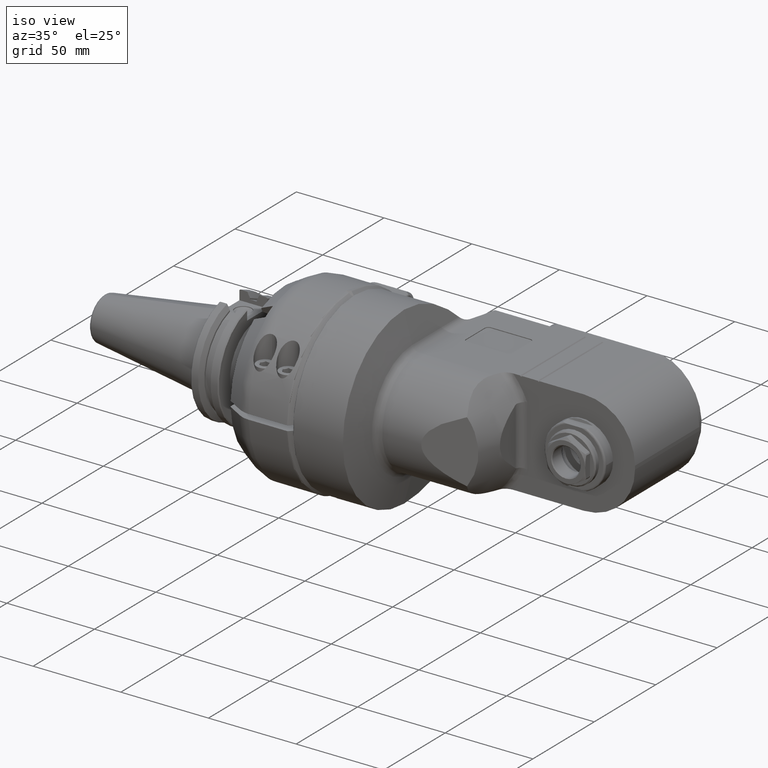
[diagram: clean part render]
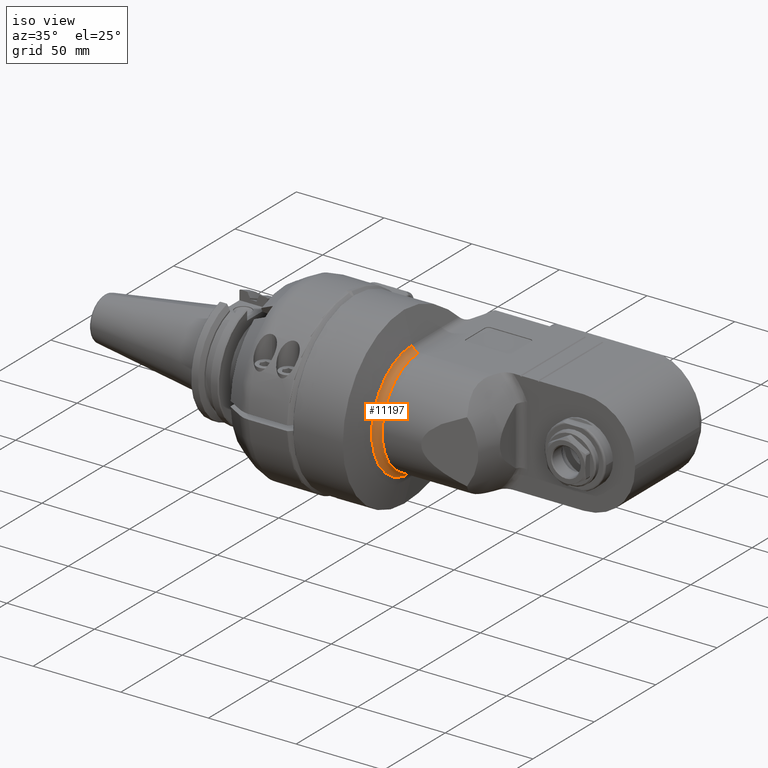
[diagram: same view with one face highlighted and labeled with its STEP entity id]
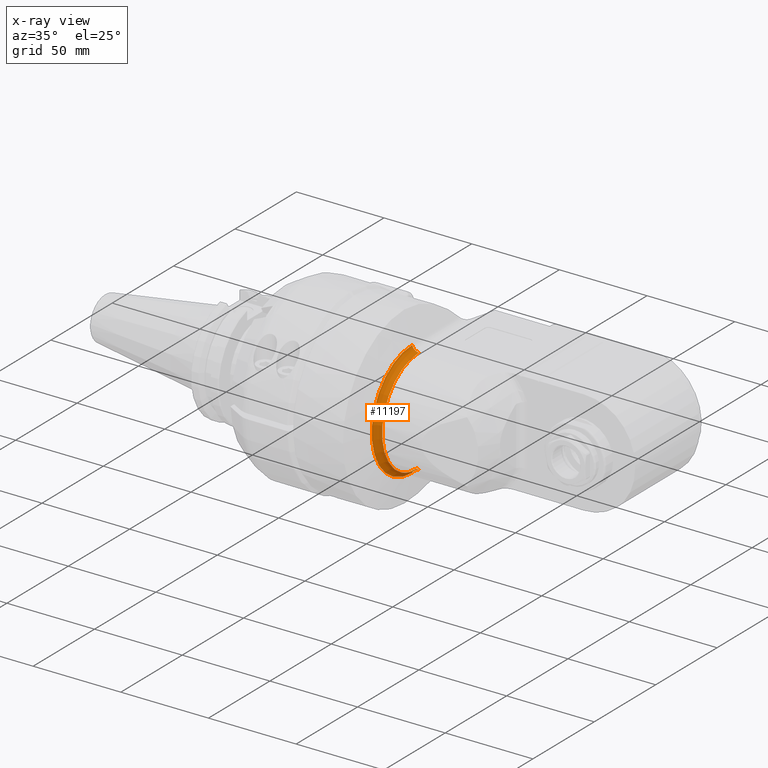
[diagram: x-ray of the same camera — body ghosted, the highlighted face saturated]
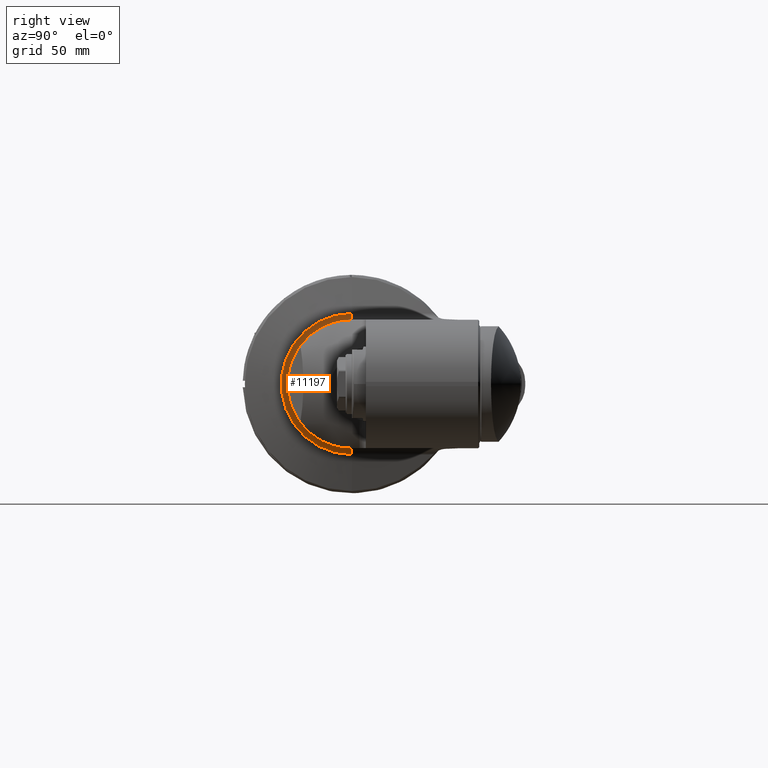
[diagram: same view with one face highlighted and labeled with its STEP entity id]
A machine part, iso view. The second image highlights one B-rep face of the part: STEP entity #11197.
The next image is the same camera in x-ray: the body ghosted, the highlighted face saturated — about 0% of this face is hidden behind the body in this view.
A second angle (right view) of the same face is appended — the face is thin or edge-on in the first view.
In plain terms, the highlighted toroidal blend (fillet) surface has major radius 34 mm and minor (blend) radius 4 mm.
Its self-contained STEP definition (entity closure, byte-faithful):
#350=TOROIDAL_SURFACE('',#11994,34.,4.);
#990=FACE_OUTER_BOUND('',#1713,.T.);
#1713=EDGE_LOOP('',(#7639,#7640,#7641,#7642));
#4097=CIRCLE('',#11993,32.96472381959);
#4098=CIRCLE('',#11995,4.);
#4099=CIRCLE('',#11996,30.);
#4100=CIRCLE('',#11997,4.);
#4785=VERTEX_POINT('',#17023);
#4786=VERTEX_POINT('',#17024);
#4787=VERTEX_POINT('',#17029);
#4788=VERTEX_POINT('',#17031);
#5914=EDGE_CURVE('',#4785,#4786,#4097,.T.);
#5917=EDGE_CURVE('',#4786,#4787,#4098,.T.);
#5918=EDGE_CURVE('',#4787,#4788,#4099,.T.);
#5919=EDGE_CURVE('',#4788,#4785,#4100,.T.);
#7639=ORIENTED_EDGE('',*,*,#5914,.T.);
#7640=ORIENTED_EDGE('',*,*,#5917,.T.);
#7641=ORIENTED_EDGE('',*,*,#5918,.T.);
#7642=ORIENTED_EDGE('',*,*,#5919,.T.);
#11197=ADVANCED_FACE('',(#990),#350,.F.);
#11993=AXIS2_PLACEMENT_3D('',#17025,#13442,#13443);
#11994=AXIS2_PLACEMENT_3D('',#17028,#13446,#13447);
#11995=AXIS2_PLACEMENT_3D('',#17030,#13448,#13449);
#11996=AXIS2_PLACEMENT_3D('',#17032,#13450,#13451);
#11997=AXIS2_PLACEMENT_3D('',#17033,#13452,#13453);
#13442=DIRECTION('center_axis',(1.,0.,0.));
#13443=DIRECTION('ref_axis',(0.,-1.,0.));
#13446=DIRECTION('center_axis',(-1.,0.,0.));
#13447=DIRECTION('ref_axis',(0.,-1.,1.22464679914735E-16));
#13448=DIRECTION('center_axis',(0.,1.,0.));
#13449=DIRECTION('ref_axis',(-0.965925826289076,0.,0.258819045102493));
#13450=DIRECTION('center_axis',(-1.,0.,0.));
#13451=DIRECTION('ref_axis',(0.,0.,-1.));
#13452=DIRECTION('center_axis',(0.,1.,0.));
#13453=DIRECTION('ref_axis',(0.,0.,-1.));
#17023=CARTESIAN_POINT('',(-92.523957343,-3.53340778345E-14,32.96472381959));
#17024=CARTESIAN_POINT('',(-92.523957343,0.,-32.96472381959));
#17025=CARTESIAN_POINT('Origin',(-92.523957343,0.,0.));
#17028=CARTESIAN_POINT('Origin',(-88.66025403784,0.,0.));
#17029=CARTESIAN_POINT('',(-88.66025403784,0.,-30.));
#17030=CARTESIAN_POINT('Origin',(-88.66025403784,0.,-34.));
#17031=CARTESIAN_POINT('',(-88.66025403784,-3.215626318717E-14,30.));
#17032=CARTESIAN_POINT('Origin',(-88.66025403784,0.,0.));
#17033=CARTESIAN_POINT('Origin',(-88.66025403784,-3.644376494546E-14,34.));